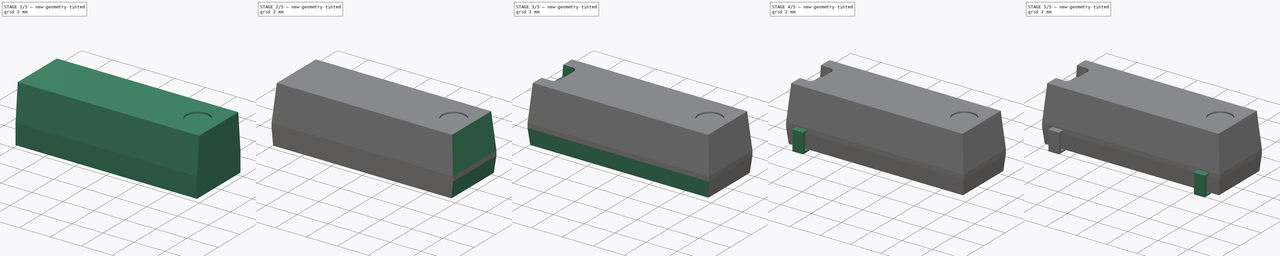
[diagram: build sequence overview — one tinted view per stage of 5, left to right]
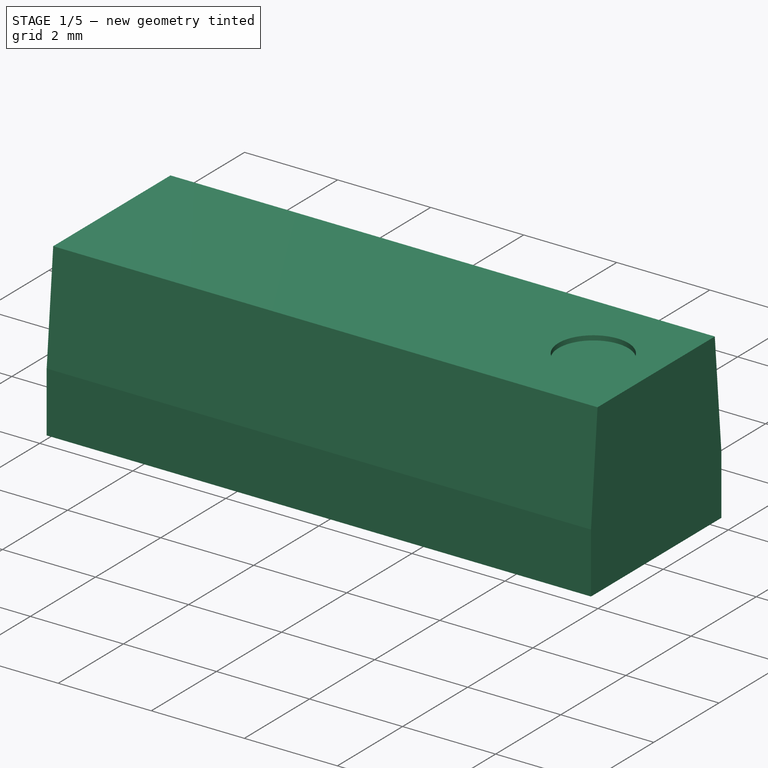
[diagram: stage 1 of 5 — iso view after this stage's code; geometry added in this stage tinted green]
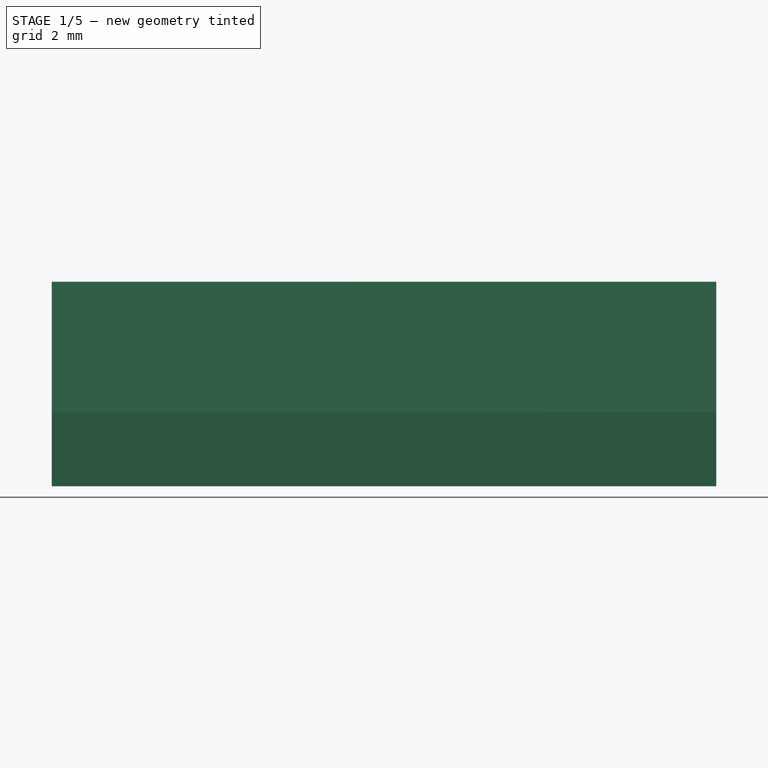
[diagram: stage 1 of 5 — front view after this stage's code; geometry added in this stage tinted green]
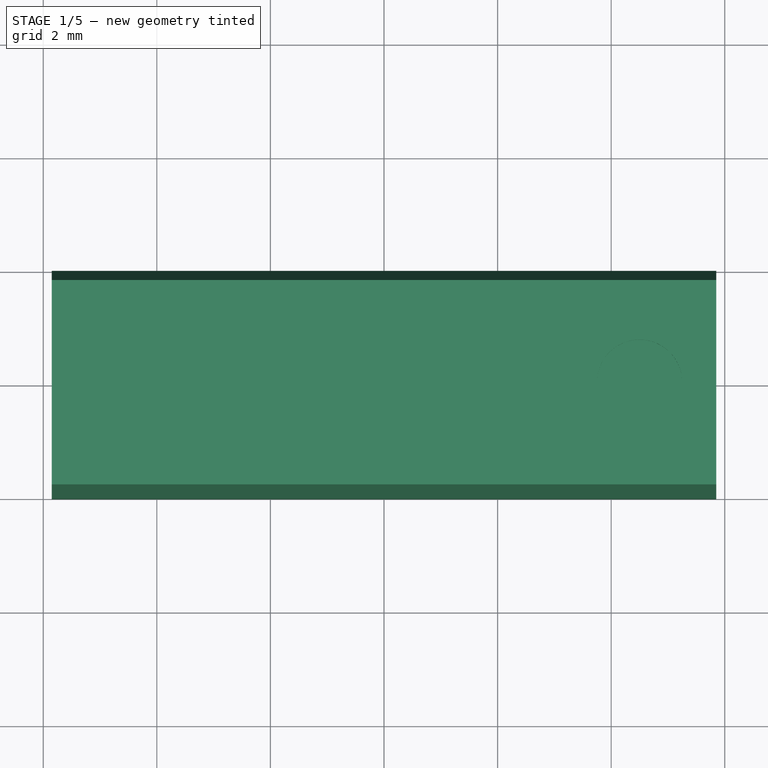
[diagram: stage 1 of 5 — top view after this stage's code; geometry added in this stage tinted green]
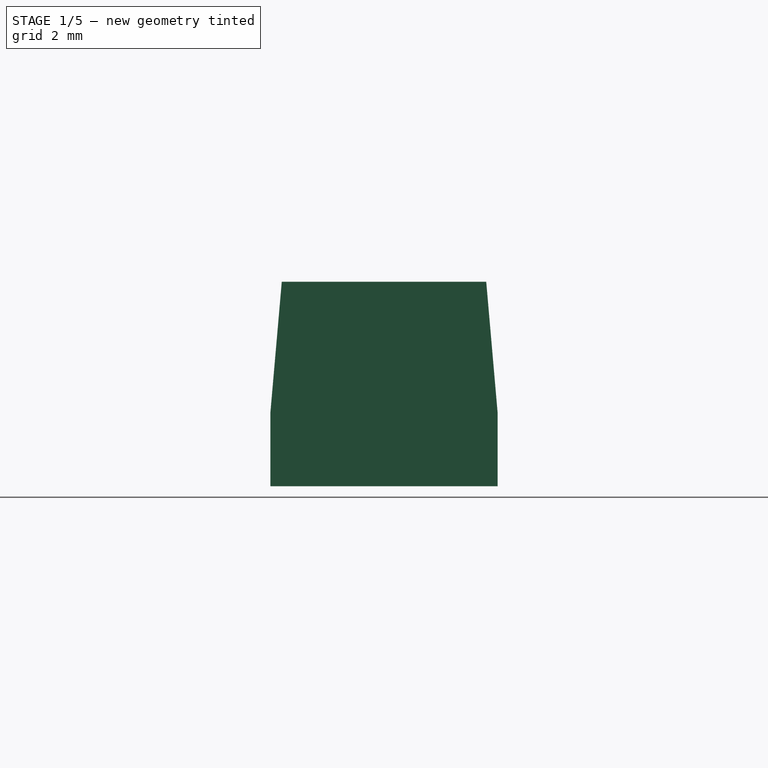
[diagram: stage 1 of 5 — right view after this stage's code; geometry added in this stage tinted green]
FCSTD DOCUMENT  (FreeCAD 0.17R11223 (Git))
Label: Crystal_SMD_SeikoEpson_MA406_07
License: All rights reserved
LicenseURL: http://en.wikipedia.org/wiki/All_rights_reserved
objects: Part::Chamfer×8, Part::Box×7, Part::Cut×6, Part::Fillet×3, Sketcher::SketchObject×1, PartDesign::Pad×1, PartDesign::Body×1, Part::Cylinder×1
note: 29 computed .brp shape members not serialized (recipe doc carries the construction recipe); baked Part::Feature solids carry a one-line shape summary decoded from their .brp

FEATURE [Sketcher::SketchObject] Sketch
  MapMode = 5
  Support = -> [XY_Plane]
  sketch-geometry (4):
    g0: LineSegment StartX=-5.85 StartY=2 StartZ=0 EndX=5.85 EndY=2 EndZ=0
    g1: LineSegment StartX=5.85 StartY=2 StartZ=0 EndX=5.85 EndY=-2 EndZ=0
    g2: LineSegment StartX=5.85 StartY=-2 StartZ=0 EndX=-5.85 EndY=-2 EndZ=0
    g3: LineSegment StartX=-5.85 StartY=-2 StartZ=0 EndX=-5.85 EndY=2 EndZ=0
  constraints (12):
    c: Coincident(g0,g1)
    c: Coincident(g1,g2)
    c: Coincident(g2,g3)
    c: Coincident(g3,g0)
    c: Horizontal(g0)
    c: Horizontal(g2)
    c: Vertical(g1)
    c: Vertical(g3)
    c: DistanceX(g0,g0) = 11.7
    c: DistanceY(g1,g1) = 4
    c: DistanceY(g-1,g0) = 2
    c: DistanceX(g0,g-1) = 5.85
FEATURE [PartDesign::Pad] Pad
  Length = 3.6
  Length2 = 100
  Profile = -> Sketch
  Type = 0
FEATURE [Part::Cylinder] Cylinder
  Angle = 360
  AttacherType = Attacher::AttachEngine3D
  Height = 1
  Placement = pos=(4.5,0,3.6) rot=(0,0,1;0rad)
  Radius = 0.75
FEATURE [Part::Cut] Cut004
  Base = -> Body
  Tool = -> Cylinder
FEATURE [Part::Chamfer] Chamfer
  Base = -> Cut004
  Edges = 1 edges: [Edge4 r1=2.3 r2=0.2]
FEATURE [Part::Chamfer] Chamfer001
  Base = -> Chamfer
  Edges = 1 edges: [Edge15 r1=0.2 r2=2.3]
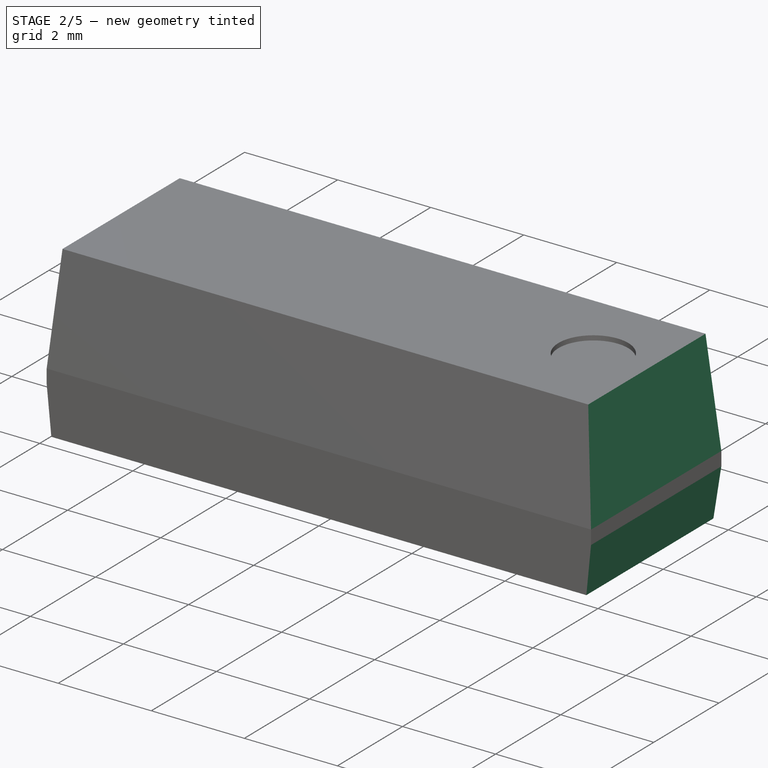
[diagram: stage 2 of 5 — iso view after this stage's code; geometry added in this stage tinted green]
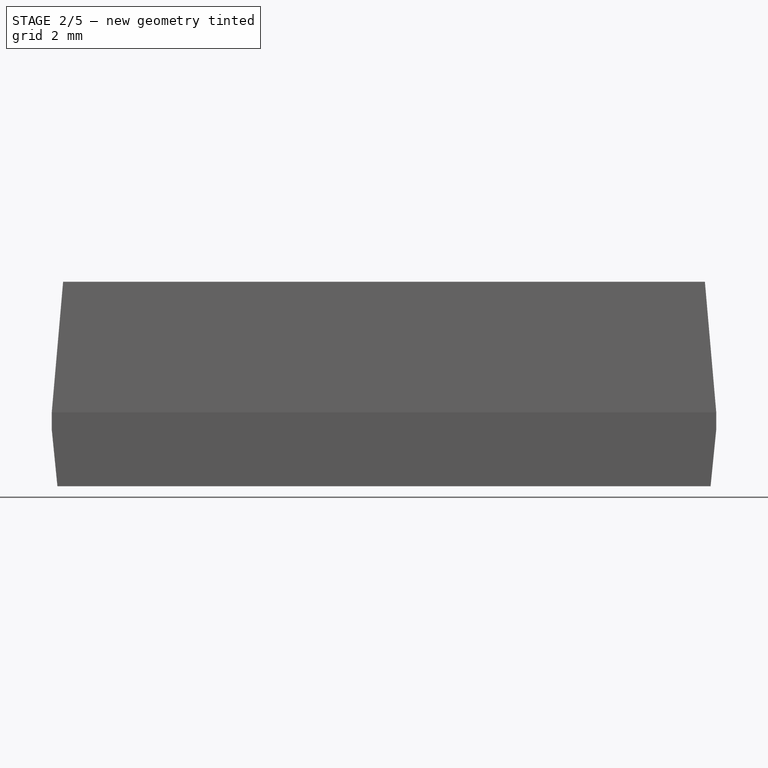
[diagram: stage 2 of 5 — front view after this stage's code; geometry added in this stage tinted green]
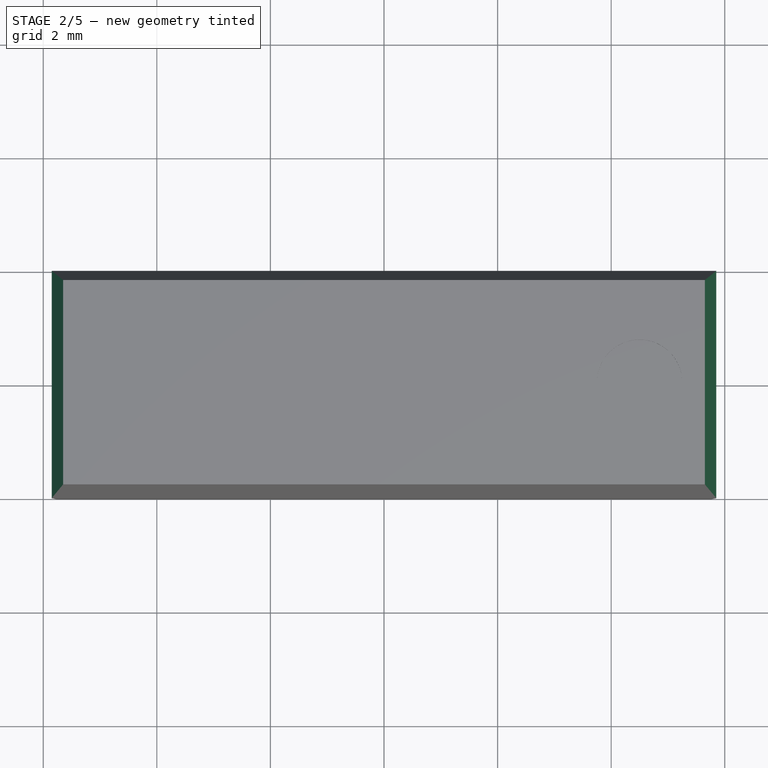
[diagram: stage 2 of 5 — top view after this stage's code; geometry added in this stage tinted green]
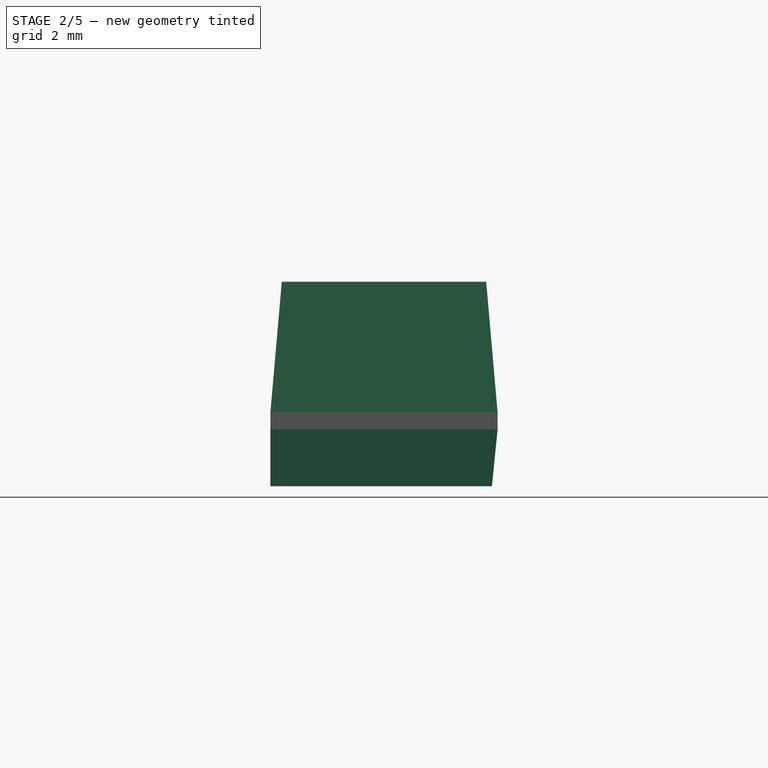
[diagram: stage 2 of 5 — right view after this stage's code; geometry added in this stage tinted green]
FEATURE [Part::Chamfer] Chamfer002
  Base = -> Chamfer001
  Edges = 1 edges: [Edge1 r1=2.3 r2=0.2]
FEATURE [Part::Chamfer] Chamfer003
  Base = -> Chamfer002
  Edges = 1 edges: [Edge17 r1=0.2 r2=2.3]
FEATURE [Part::Chamfer] Chamfer004
  Base = -> Chamfer003
  Edges = 1 edges: [Edge22 r1=1 r2=0.1]
FEATURE [Part::Chamfer] Chamfer005
  Base = -> Chamfer004
  Edges = 1 edges: [Edge8 r1=0.1 r2=1]
FEATURE [Part::Chamfer] Chamfer006
  Base = -> Chamfer005
  Edges = 1 edges: [Edge7 r1=0.1 r2=1]
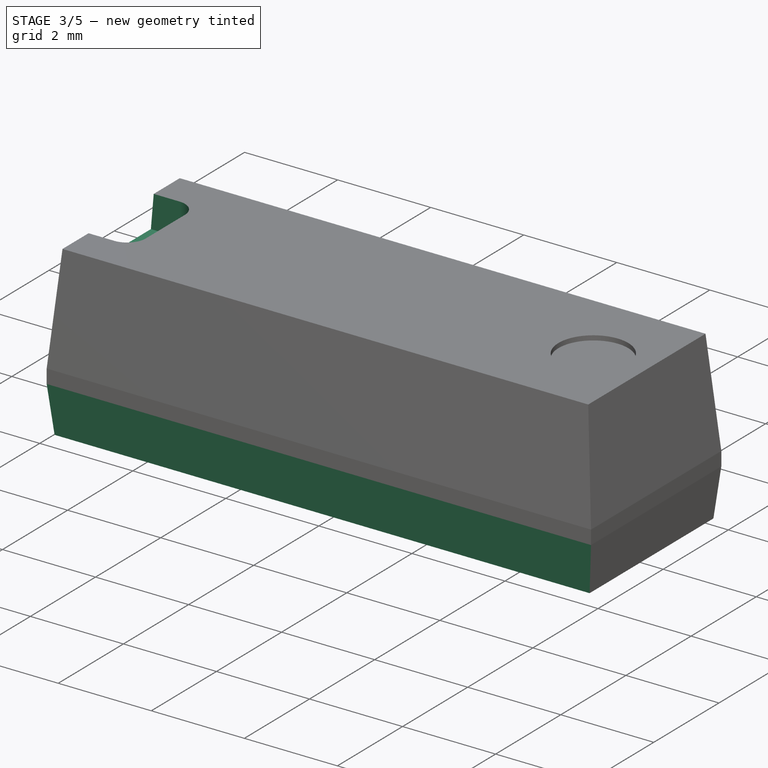
[diagram: stage 3 of 5 — iso view after this stage's code; geometry added in this stage tinted green]
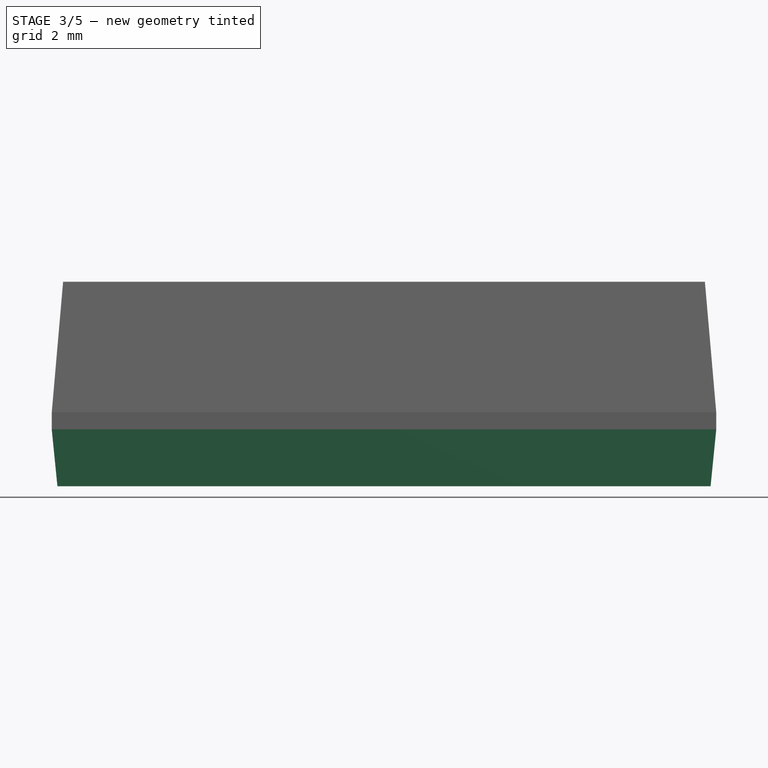
[diagram: stage 3 of 5 — front view after this stage's code; geometry added in this stage tinted green]
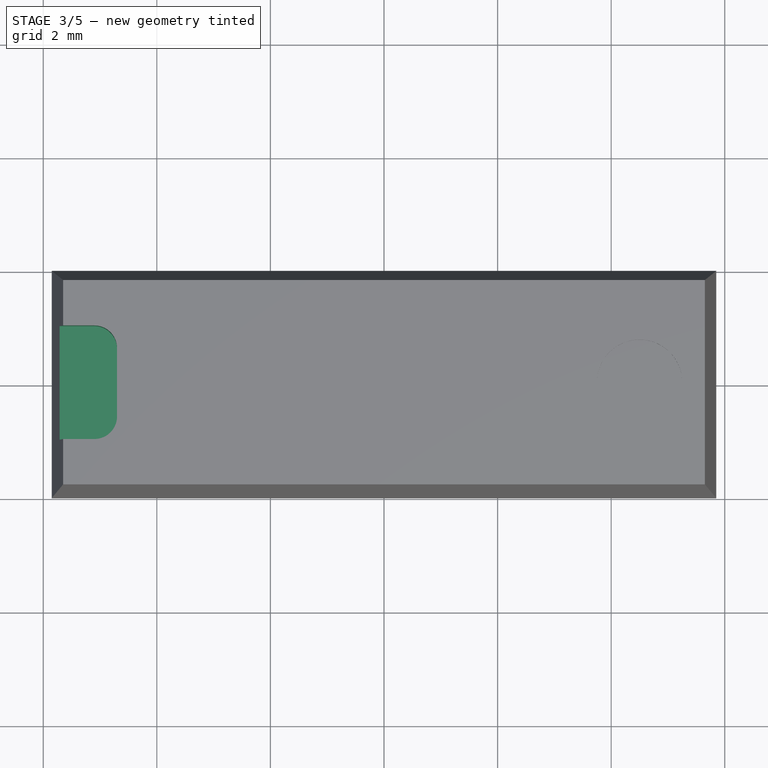
[diagram: stage 3 of 5 — top view after this stage's code; geometry added in this stage tinted green]
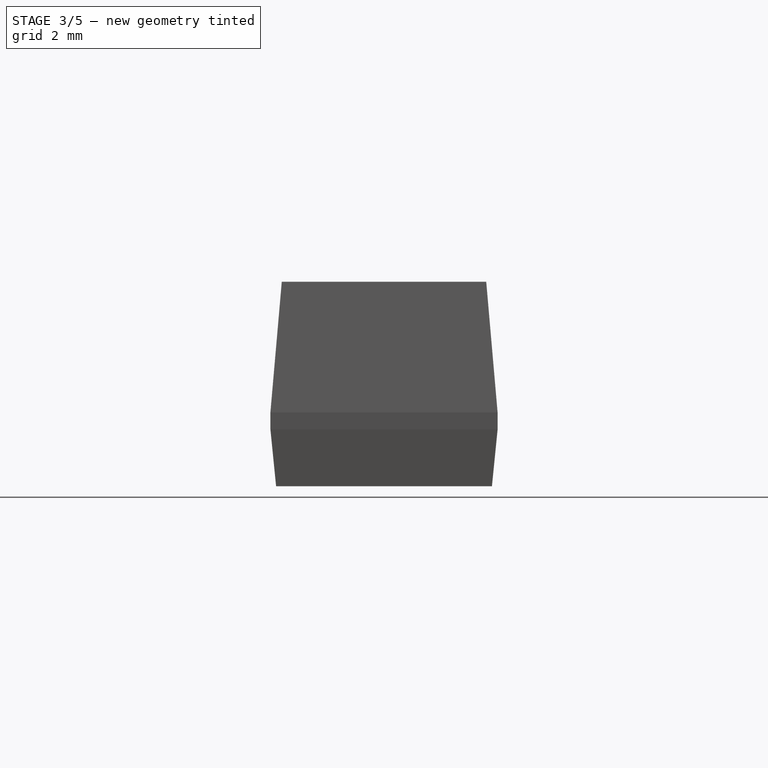
[diagram: stage 3 of 5 — right view after this stage's code; geometry added in this stage tinted green]
FEATURE [Part::Box] Box006  label="Kub006"
  AttacherType = Attacher::AttachEngine3D
  Height = 1
  Length = 2
  Placement = pos=(5,-1,3) rot=(0,0,1;0rad)
  Width = 2
FEATURE [Part::Fillet] Fillet
  Base = -> Box006
  Edges = 1 edges r=0.4: [Edge1]
FEATURE [Part::Fillet] Fillet001
  Base = -> Fillet
  Edges = 1 edges r=0.4: [Edge3]
FEATURE [Part::Fillet] Fillet002
  Base = -> Fillet001
  Edges = 2 edges r=0.4: [Edge17,Edge18]
  Placement = pos=(-11.7,0,0) rot=(0,0,1;0rad)
FEATURE [Part::Chamfer] Chamfer007
  Base = -> Chamfer006
  Edges = 1 edges: [Edge3 r1=0.1 r2=1]
FEATURE [Part::Cut] Cut005
  Base = -> Chamfer007
  Tool = -> Fillet002
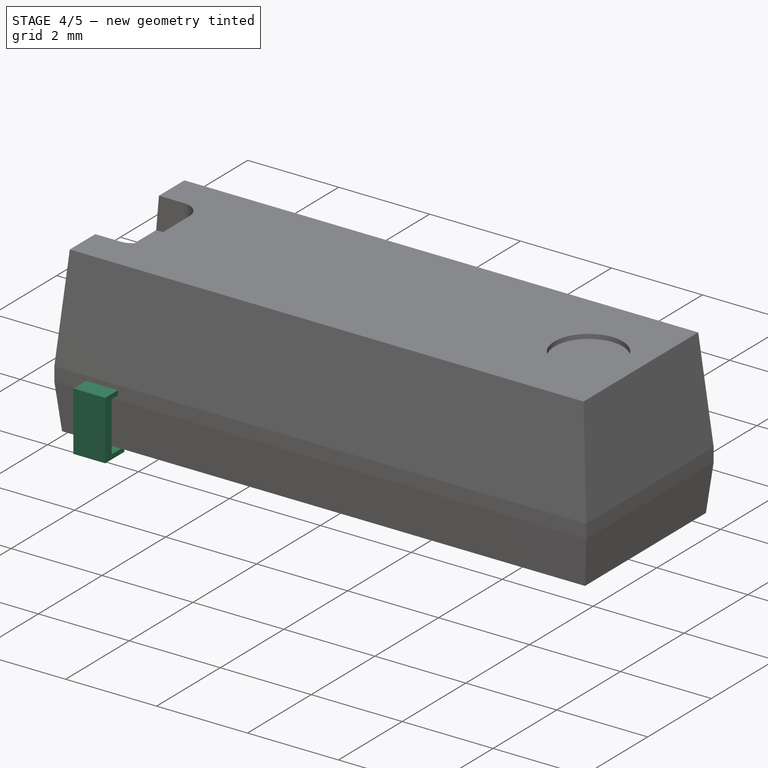
[diagram: stage 4 of 5 — iso view after this stage's code; geometry added in this stage tinted green]
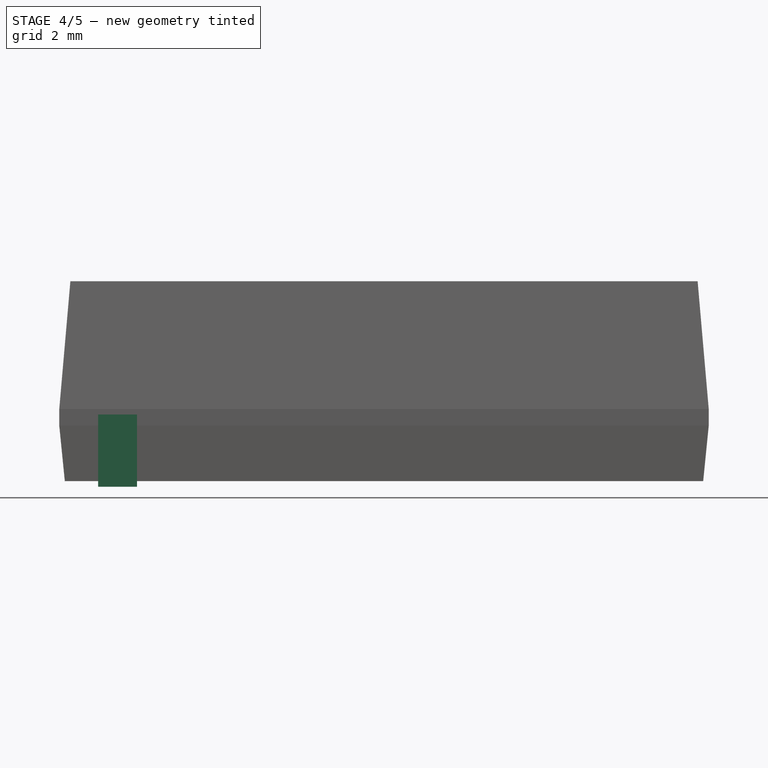
[diagram: stage 4 of 5 — front view after this stage's code; geometry added in this stage tinted green]
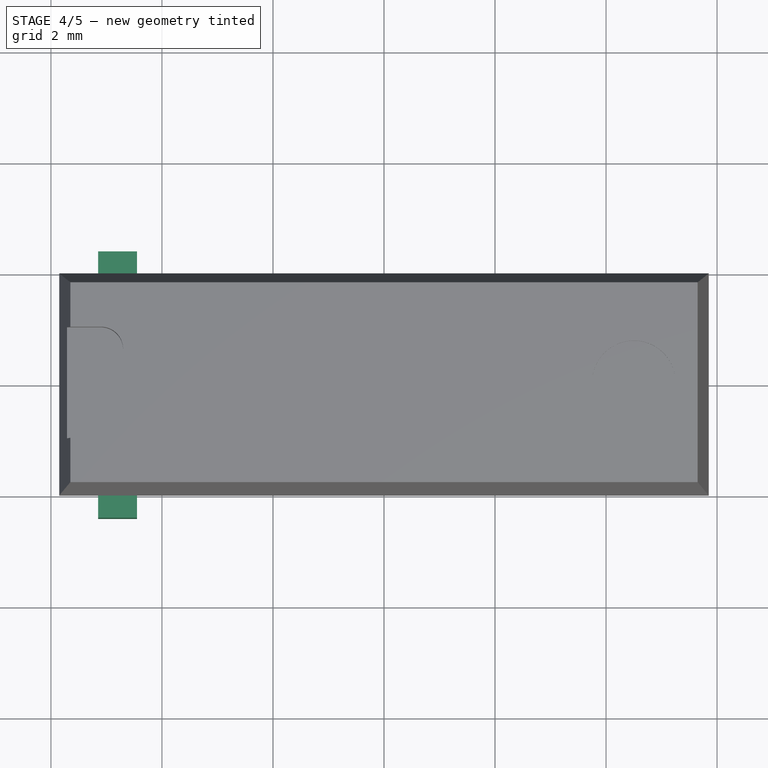
[diagram: stage 4 of 5 — top view after this stage's code; geometry added in this stage tinted green]
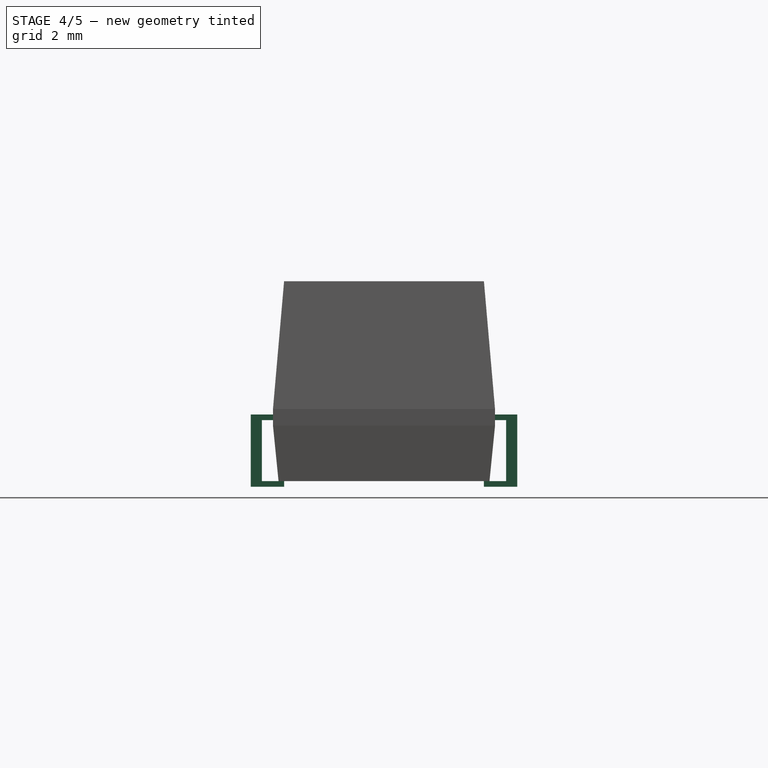
[diagram: stage 4 of 5 — right view after this stage's code; geometry added in this stage tinted green]
FEATURE [Part::Box] Box001  label="Kub001"
  AttacherType = Attacher::AttachEngine3D
  Height = 1.3
  Length = 0.7
  Placement = pos=(-5.15,-2.4,0) rot=(0,0,1;0rad)
  Width = 4.8
FEATURE [Part::Box] Box004  label="Kub004"
  AttacherType = Attacher::AttachEngine3D
  Height = 1.1
  Length = 2.7
  Placement = pos=(-5.55,-2.2,0.1) rot=(0,0,1;0rad)
  Width = 4.4
FEATURE [Part::Box] Box005  label="Kub005"
  AttacherType = Attacher::AttachEngine3D
  Height = 1.1
  Length = 2.7
  Placement = pos=(-6.55,-1.8,-0.9) rot=(0,0,1;0rad)
  Width = 3.6
FEATURE [Part::Cut] Cut002
  Base = -> Box001
  Tool = -> Box004
FEATURE [Part::Cut] Cut003
  Base = -> Cut002
  Tool = -> Box005
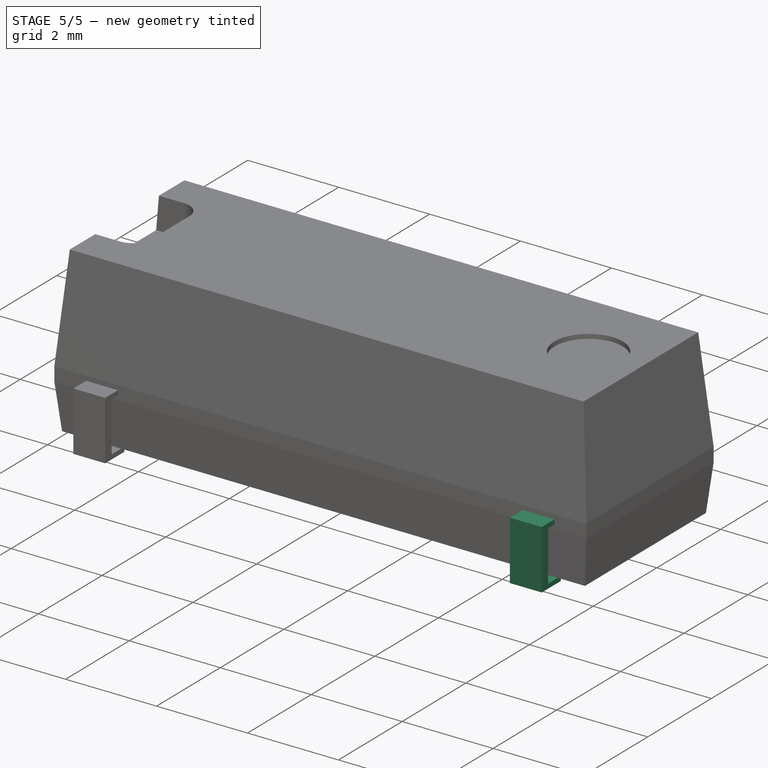
[diagram: stage 5 of 5 — iso view after this stage's code; geometry added in this stage tinted green]
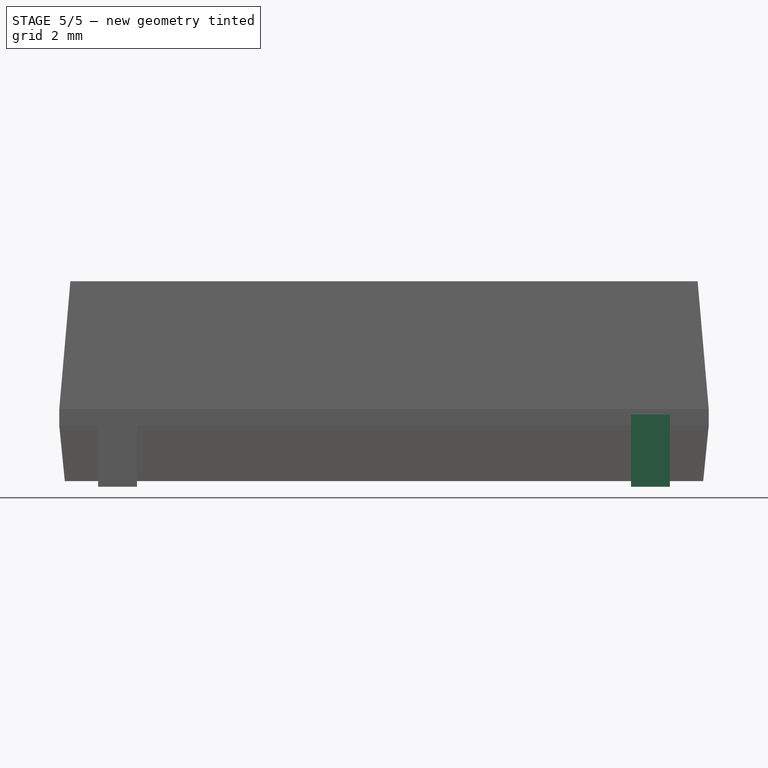
[diagram: stage 5 of 5 — front view after this stage's code; geometry added in this stage tinted green]
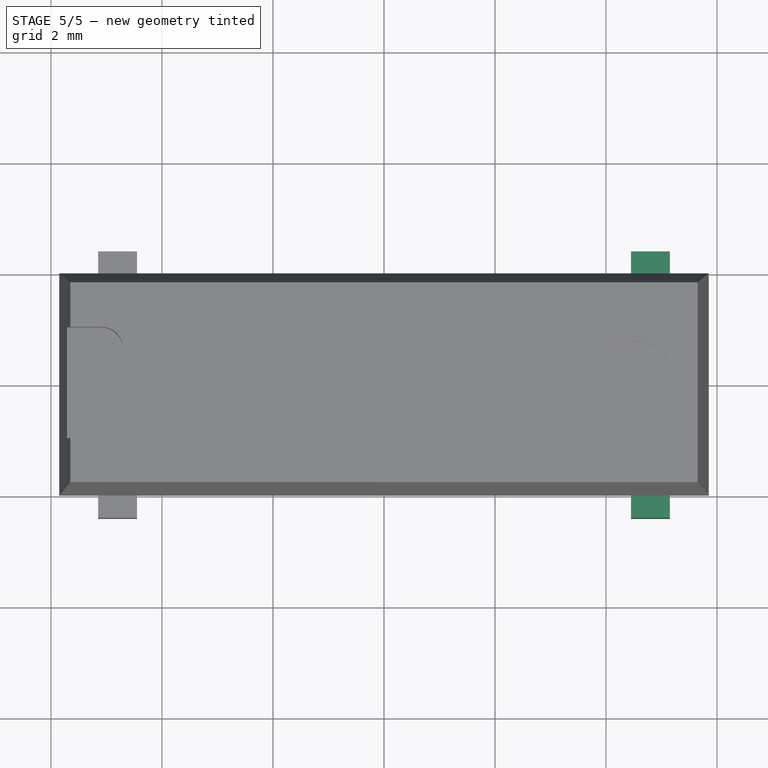
[diagram: stage 5 of 5 — top view after this stage's code; geometry added in this stage tinted green]
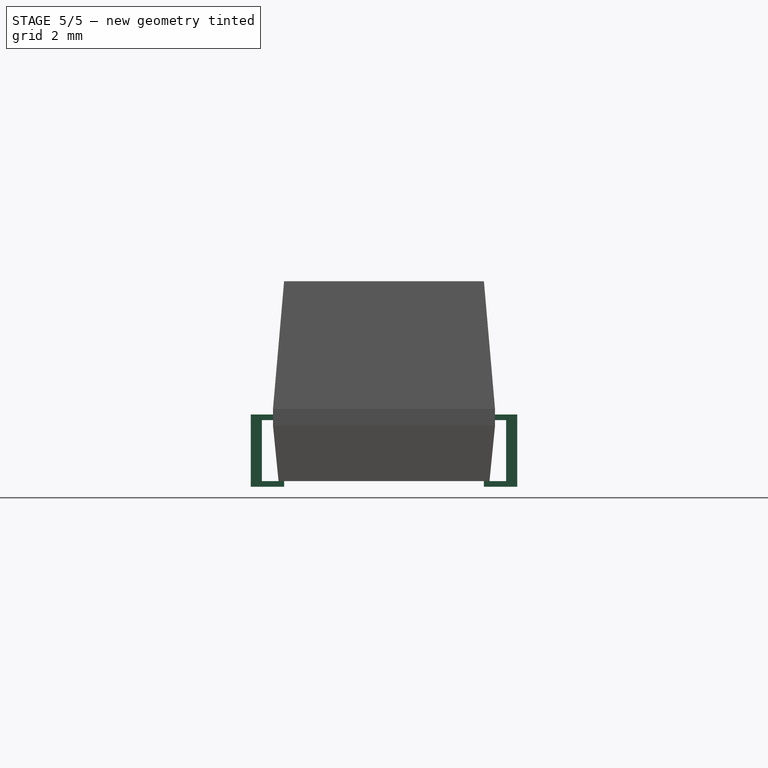
[diagram: stage 5 of 5 — right view after this stage's code; geometry added in this stage tinted green]
FEATURE [PartDesign::Body] Body
  Group = -> [Sketch,Pad]
  Origin = -> BodyOrigin
  Placement = pos=(0,0,0.1) rot=(0,0,1;0rad)
  Tip = -> Pad
FEATURE [Part::Box] Box  label="Kub"
  AttacherType = Attacher::AttachEngine3D
  Height = 1.3
  Length = 0.7
  Placement = pos=(4.45,-2.4,0) rot=(0,0,1;0rad)
  Width = 4.8
FEATURE [Part::Box] Box002  label="Kub002"
  AttacherType = Attacher::AttachEngine3D
  Height = 1.1
  Length = 2.7
  Placement = pos=(3.45,-2.2,0.1) rot=(0,0,1;0rad)
  Width = 4.4
FEATURE [Part::Box] Box003  label="Kub003"
  AttacherType = Attacher::AttachEngine3D
  Height = 1.1
  Length = 2.7
  Placement = pos=(3.45,-1.8,-0.9) rot=(0,0,1;0rad)
  Width = 3.6
FEATURE [Part::Cut] Cut
  Base = -> Box
  Tool = -> Box002
FEATURE [Part::Cut] Cut001
  Base = -> Cut
  Tool = -> Box003
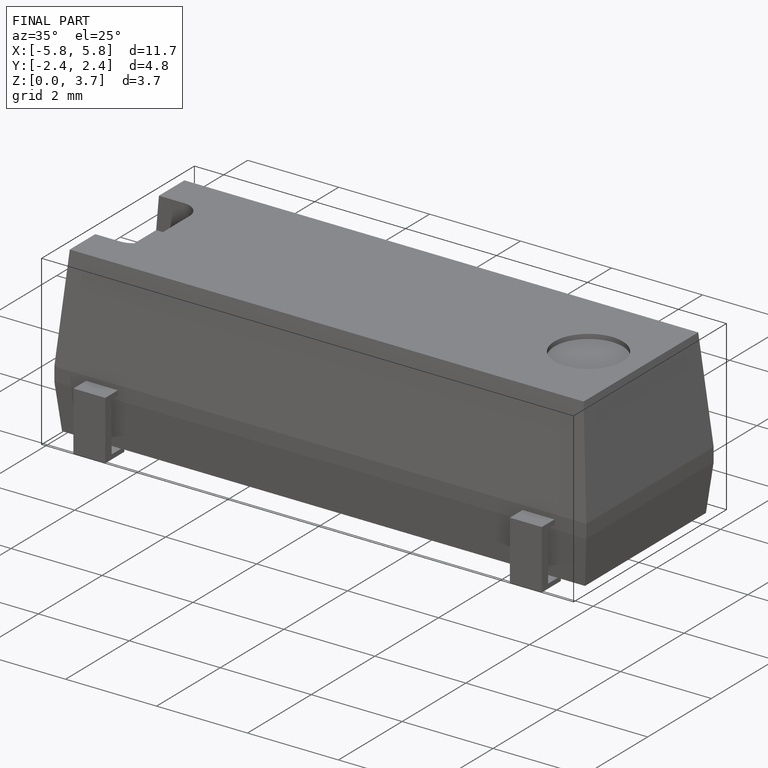
[diagram: finished part — iso view with bounding-box wireframe]
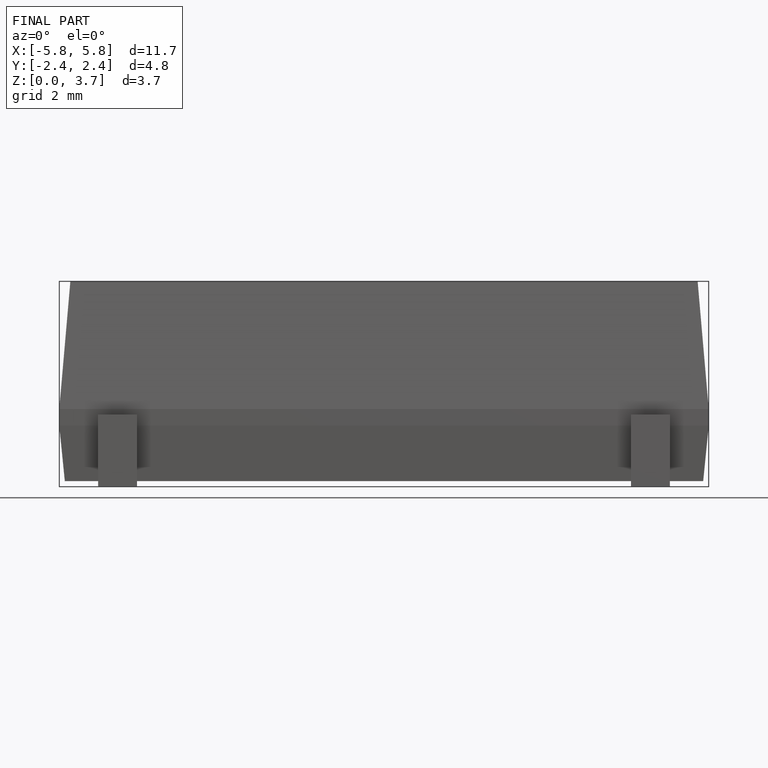
[diagram: finished part — front view with bounding-box wireframe]
